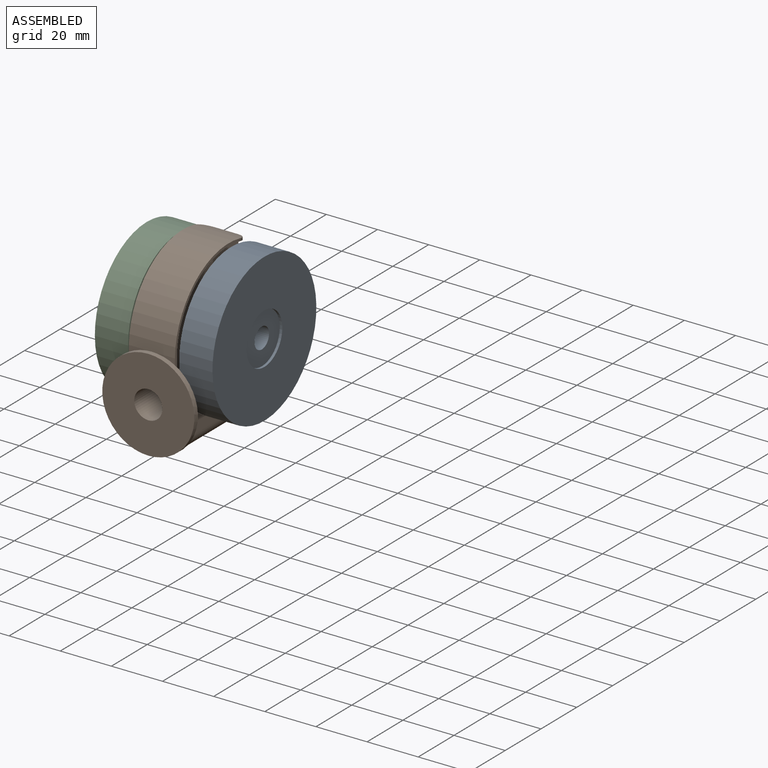
[diagram: assembled view]
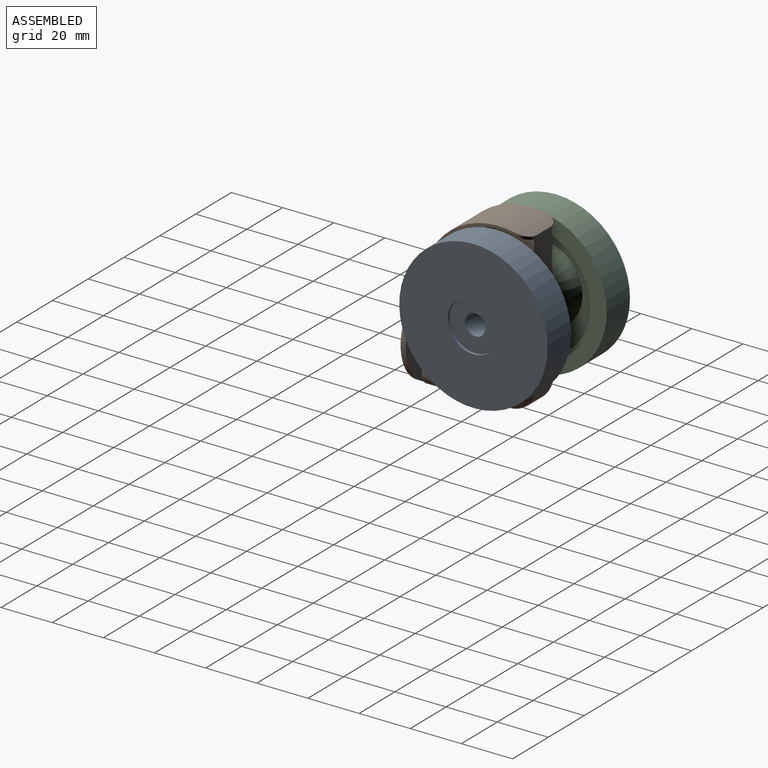
[diagram: assembled view, second angle]
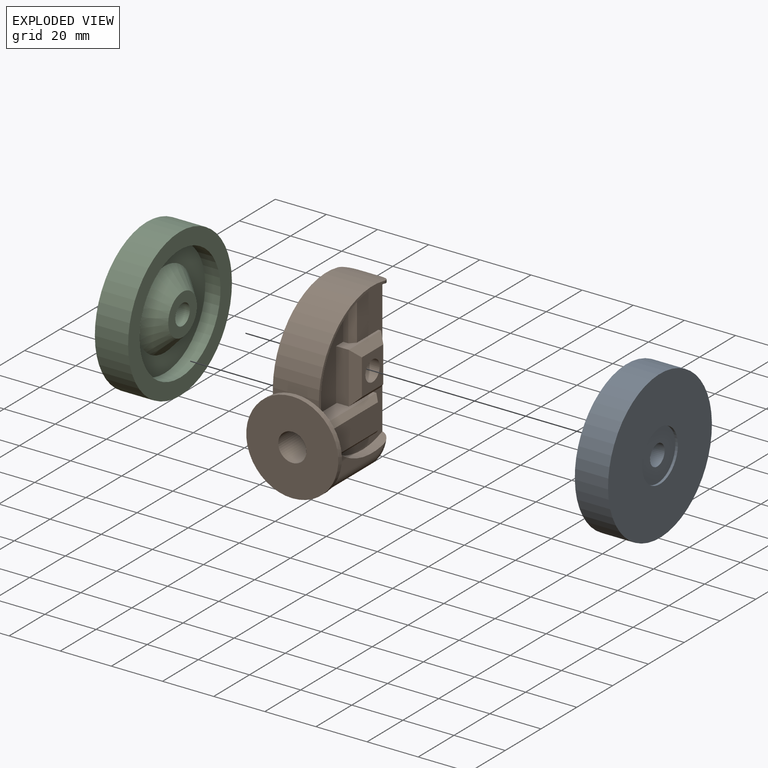
[diagram: exploded view]
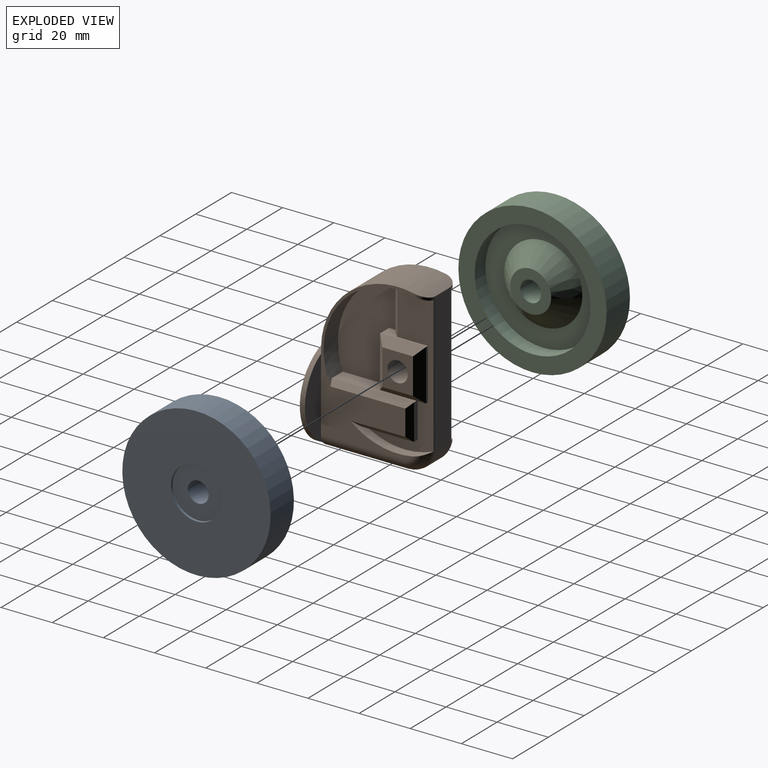
[diagram: exploded view, second angle]
ASSEMBLY  parts=3 mates=2
PART A: 10 faces, bbox 14x58x58 mm
  f0: cylinder r=4.05mm len=13mm, axis (1,0,0), area 330.8mm2, adj f7,f9
  f1: cone r=8mm half-angle=46.2deg, axis (-1,0,0), area 741.2mm2, adj f2,f7
  f2: plane 45.24x45.24mm, normal (1,0,0), area 871mm2, adj f1,f3
  f3: cylinder r=22.62mm len=45.24mm, axis (1,0,0), area 852.7mm2, adj f2,f4
  f4: plane 58x58mm, normal (1,0,0), area 1034.7mm2, adj f3,f5
  f5: cylinder r=29mm len=58mm, axis (1,0,0), area 2368.8mm2, adj f4,f6
  f6: plane 58x58mm, normal (-1,0,0), area 2327.9mm2, adj f5,f8
  f7: plane 16x16mm, normal (1,0,0), area 149.5mm2, adj f0,f1
  f8: cylinder r=10mm len=20mm, axis (-1,0,0), area 62.8mm2, adj f6,f9
  f9: plane 20x20mm, normal (-1,0,0), area 262.6mm2, adj f0,f8
PART B: 75 faces, bbox 36.1x43.4x65.3 mm
  f0: plane 4x0.27mm, normal (0,-1,0), area 1.1mm2, adj f2,f33,f35,f46
  f1: cylinder r=29mm len=41.27mm, axis (-1,0,0), area 473mm2, adj f2,f3,f5,f15,f33,f35,f39,f53
  f2: plane 32.12x6mm, normal (0,0,1), area 152.7mm2, adj f0,f1,f7,f33,f35,f58
  f3: plane 18.57x2mm, normal (0,-1,0), area 37.1mm2, adj f1,f35,f45,f53
  f4: plane 0.87x0.28mm, normal (0,-0.38,0.93), area 0.1mm2, adj f9,f33,f38
  f5: plane 0.92x0.29mm, normal (0,-0.38,-0.93), area 0.1mm2, adj f1,f33,f39
  f6: cylinder r=29mm len=41.27mm, axis (-1,0,0), area 473mm2, adj f16,f21,f22,f31,f32,f34,f41,f54
  f7: plane 14x2mm, normal (0,1,0), area 28mm2, adj f2,f8,f33,f59
  f8: plane 20.88x2mm, normal (0,0,-1), area 41.8mm2, adj f7,f9,f33,f60
  f9: cylinder r=29mm len=29.49mm, axis (-1,0,0), area 110.7mm2, adj f4,f8,f15,f33,f38,f60
  f10: plane 31.79x10.16mm, normal (0,1,0), area 199.8mm2, adj f12,f15,f37
  f11: cylinder r=5.5mm len=18mm, axis (0,-1,0), area 622mm2, adj f14,f61
  f12: cylinder r=18mm len=36mm, axis (0,-1,0), area 226.2mm2, adj f10,f13,f14,f26,f27,f28,f29
  f13: plane 31.79x10.16mm, normal (0,1,0), area 199.8mm2, adj f12,f16,f40
  f14: plane 36x36mm, normal (0,-1,0), area 922.8mm2, adj f11,f12
  f15: plane 60.27x36.28mm, normal (-1,0,0), area 566.5mm2, adj f1,f9,f10,f19,f28,f37,f38,f39
  f16: plane 60.27x36.28mm, normal (1,0,0), area 566.5mm2, adj f6,f13,f19,f25,f29,f40,f41,f42
  f17: plane 0.87x0.28mm, normal (0,-0.38,0.93), area 0.1mm2, adj f25,f32,f42
  f18: plane 32.28x8mm, normal (0,0,-1), area 258.2mm2, adj f26,f27,f36,f37,f40
  f19: cylinder r=30mm len=41.28mm, axis (-1,0,0), area 1032mm2, adj f15,f16,f20,f28,f29,f39,f41
  f20: plane 54.06x8mm, normal (0,1,0), area 432.5mm2, adj f19,f36,f39,f41
  f21: plane 0.92x0.29mm, normal (0,-0.38,-0.93), area 0.1mm2, adj f6,f32,f41
  f22: plane 32.12x6mm, normal (0,0,1), area 152.7mm2, adj f6,f23,f30,f32,f34,f57
  f23: plane 14x2mm, normal (0,1,0), area 28mm2, adj f22,f24,f32,f56
  f24: plane 20.88x2mm, normal (0,0,-1), area 41.8mm2, adj f23,f25,f32,f55
  f25: cylinder r=29mm len=29.49mm, axis (-1,0,0), area 110.7mm2, adj f16,f17,f24,f32,f42,f55
  f26: plane 7.84x1.8mm, normal (0,-1,0), area 2.5mm2, adj f12,f18,f37
  f27: plane 7.84x1.8mm, normal (0,-1,0), area 2.5mm2, adj f12,f18,f40
  f28: plane 9x2.41mm, normal (0,-1,0), area 7mm2, adj f12,f15,f19
  f29: plane 9x2.41mm, normal (0,-1,0), area 7mm2, adj f12,f16,f19
  f30: plane 4x0.27mm, normal (0,-1,0), area 1.1mm2, adj f22,f32,f34,f48
  f31: plane 18.57x2mm, normal (0,-1,0), area 37.1mm2, adj f6,f34,f49,f54
  f32: plane 58x27.06mm, normal (1,0,0), area 491.5mm2, adj f6,f17,f21,f22,f23,f24,f25,f30
  f33: plane 58x27.06mm, normal (-1,0,0), area 491.5mm2, adj f0,f1,f2,f4,f5,f7,f8,f9
  f34: plane 38.83x24mm, normal (1,0,0), area 676.3mm2, adj f6,f22,f30,f31,f48,f49,f51
  f35: plane 38.83x24mm, normal (-1,0,0), area 676.3mm2, adj f0,f1,f2,f3,f44,f45,f46
  f36: cylinder r=9mm len=9mm, axis (-1,0,0), area 113.1mm2, adj f18,f20,f38,f42
  f37: cylinder r=5mm len=32.28mm, axis (0,1,0), area 253.5mm2, adj f10,f15,f18,f26,f38
  f38: torus R=4mm, axis (1,0,0), area 80mm2, adj f4,f9,f15,f33,f36,f37,f39
  f39: cylinder r=5mm len=55.6mm, axis (0,0,-1), area 61.5mm2, adj f1,f5,f15,f19,f20,f33,f38
  f40: cylinder r=5mm len=32.28mm, axis (0,-1,0), area 253.5mm2, adj f13,f16,f18,f27,f42
  f41: cylinder r=5mm len=55.6mm, axis (0,0,-1), area 61.5mm2, adj f6,f16,f19,f20,f21,f32,f42
  f42: torus R=4mm, axis (1,0,0), area 80mm2, adj f16,f17,f25,f32,f36,f40,f41
  f43: plane 14x12mm, normal (-1,0,0), area 117.7mm2, adj f70,f71,f72,f73,f74
  f44: plane 20x5mm, normal (0,-1,0), area 100mm2, adj f35,f45,f46,f73
  f45: plane 18x5mm, normal (0,0,1), area 36mm2, adj f3,f33,f35,f44,f47,f53,f72
  f46: plane 18x5mm, normal (0,0,-1), area 34mm2, adj f0,f33,f35,f44,f47,f71
  f47: plane 20x1mm, normal (0,1,0), area 20mm2, adj f33,f45,f46,f70
  f48: plane 18x5mm, normal (0,0,-1), area 34mm2, adj f30,f32,f34,f50,f51,f67
  f49: plane 18x5mm, normal (0,0,1), area 36mm2, adj f31,f32,f34,f50,f51,f54,f68
  f50: plane 20x1mm, normal (0,1,0), area 20mm2, adj f32,f48,f49,f66
  f51: plane 20x5mm, normal (0,-1,0), area 100mm2, adj f34,f48,f49,f69
  f52: plane 14x12mm, normal (1,0,0), area 117.7mm2, adj f66,f67,f68,f69,f74
  f53: plane 18.85x2mm, normal (-0.71,-0.71,0), area 52.9mm2, adj f1,f3,f33,f45
  f54: plane 18.85x2mm, normal (0.71,-0.71,0), area 52.9mm2, adj f6,f31,f32,f49
  f55: plane 23.66x2.08mm, normal (0.71,0,-0.71), area 60.2mm2, adj f16,f24,f25,f56
  f56: plane 14x2mm, normal (0.71,0.71,0), area 33.9mm2, adj f16,f23,f55,f57
  f57: plane 32.14x2.02mm, normal (0.71,0,0.71), area 86.9mm2, adj f6,f16,f22,f56
  f58: plane 32.14x2.02mm, normal (-0.71,0,0.71), area 86.9mm2, adj f1,f2,f15,f59
  f59: plane 14x2mm, normal (-0.71,0.71,0), area 33.9mm2, adj f7,f15,f58,f60
  f60: plane 23.66x2.08mm, normal (-0.71,0,-0.71), area 60.2mm2, adj f8,f9,f15,f59
  f61: plane 13x13mm, normal (0,1,0), area 37.7mm2, adj f11,f63
  f62: plane 13x13mm, normal (0,-1,0), area 37.7mm2, adj f63,f65
  f63: cylinder r=6.5mm len=13mm, axis (0,1,0), area 122.5mm2, adj f61,f62
  f64: plane 11x11mm, normal (0,-1,0), area 95mm2, adj f65
  f65: cylinder r=5.5mm len=11mm, axis (0,-1,0), area 345.6mm2, adj f62,f64
  f66: plane 20x3mm, normal (0.71,0.71,0), area 72.1mm2, adj f50,f52,f67,f68
  f67: plane 18x3mm, normal (0.71,0,-0.71), area 63.6mm2, adj f48,f52,f66,f69
  f68: plane 18x3mm, normal (0.71,0,0.71), area 63.6mm2, adj f49,f52,f66,f69
  f69: plane 20x3mm, normal (0.71,-0.71,0), area 72.1mm2, adj f51,f52,f67,f68
  f70: plane 20x3mm, normal (-0.71,0.71,0), area 72.1mm2, adj f43,f47,f71,f72
  f71: plane 18x3mm, normal (-0.71,0,-0.71), area 63.6mm2, adj f43,f46,f70,f73
  f72: plane 18x3mm, normal (-0.71,0,0.71), area 63.6mm2, adj f43,f45,f70,f73
  f73: plane 20x3mm, normal (-0.71,-0.71,0), area 72.1mm2, adj f43,f44,f71,f72
  f74: cylinder r=4mm len=18mm, axis (-1,0,0), area 452.4mm2, adj f43,f52
PART C: same geometry as A
PLACE A rot(axis=(0,-0.82,-0.57),180deg) t=(-16.96,-33.19,7.13)mm
PLACE B t=(-39.96,-65.18,-10.14)mm fixed
PLACE C rot(axis=(1,0,0),0.3deg) t=(-62.96,-33.19,7.13)mm
MATE revolute A.f0 <-> B.f1  axis (-1,0,0) through (-30.96,-33.19,7.13)mm
MATE revolute C.f0 <-> B.f1  axis (1,0,0) through (-48.96,-33.19,7.13)mm
